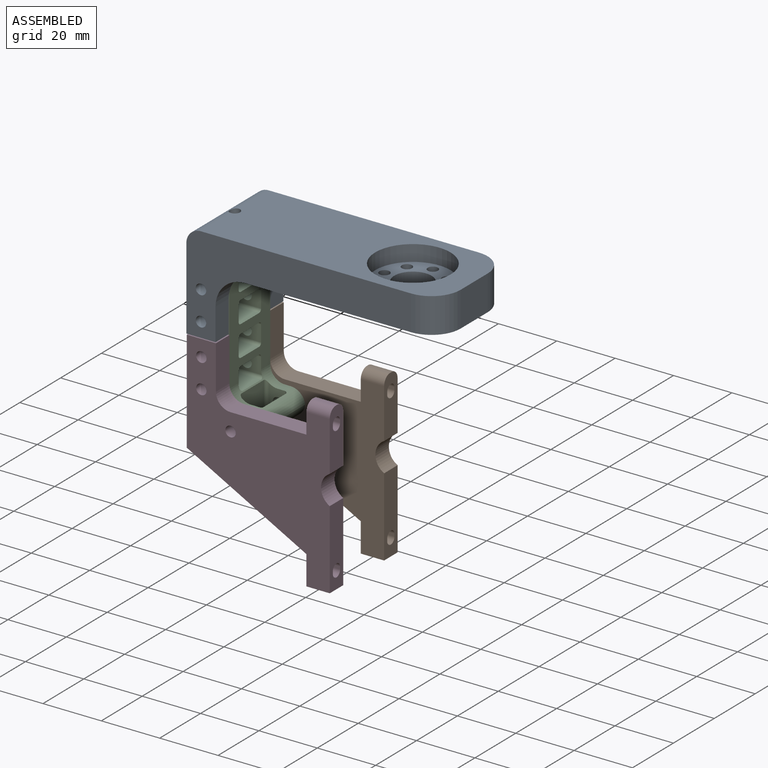
[diagram: assembled view]
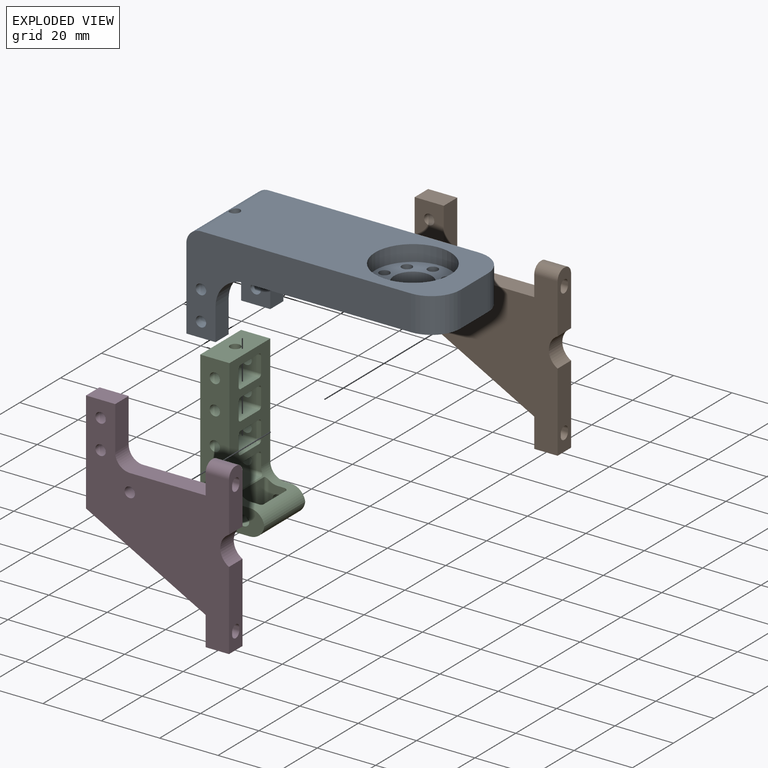
[diagram: exploded view]
GUIDED TOUR — MATED ASSEMBLY (Onshape document 7c3bd5db5bb2b40f2ca0b6bd, AutoMate assembly 7c3bd5db5bb2b40f2ca0b6bd_ed5db630326f70127dd3dd8f_477186eeab16eec67a450e1f_default)

This assembly has 4 components, labeled P0..P3 below (a component is one placed occurrence of a part; the same part can appear more than once), held together by 4 mates. A mate is a constraint between two components; its type names the relative motion it leaves free:
  FASTENED — locks the two components together rigidly (no relative motion),
  PLANAR — leaves sliding in the plane through the listed point (normal = the listed direction) and rotation about that normal free.
Axis/direction vectors are unit vectors and 'through' points are millimeter coordinates, both in the assembly's world frame.

MATES
  1. FASTENED "Fastened 1": P2 <-> P3, direction (0.000, -1.000, 0.000) through (-37.52, -10.86, 22.26) mm
  2. PLANAR "Planar 3": P0 <-> P2, direction (0.000, -1.000, 0.000) through (-36.78, 9.14, 39.67) mm
  3. PLANAR "Planar 1": P0 <-> P2, direction (0.000, 0.000, -1.000) through (2.05, -1.06, 49.28) mm
  4. FASTENED "Fastened 2": P1 <-> P2, direction (0.000, -1.000, 0.000) through (-37.52, 9.14, 22.26) mm

ASSEMBLY ORDER
  1. P0 — the base component [order verified]
  2. P2 [order verified]
  3. P3 [order verified]
  4. P1 [order verified]
Order-tag legend:
  [order verified] — this step's position reverses a verified removal order: the component was checked to insert without passing through the ones already placed.

Of the 4 components, 3 carry the full construction recipe — the FeatureScript program that regenerates the part's solid from scratch; the rest are supplied as boundary geometry only.
Each toured component is shown spotlighted twice — in the assembled view, then in the exploded view, where a leader line traces a displaced component back to its assembled socket (saturated green if recipe-attached, orange if geometry-only; every other component desaturated gray) — followed by its recipe or geometry summary and the mates that hold it.
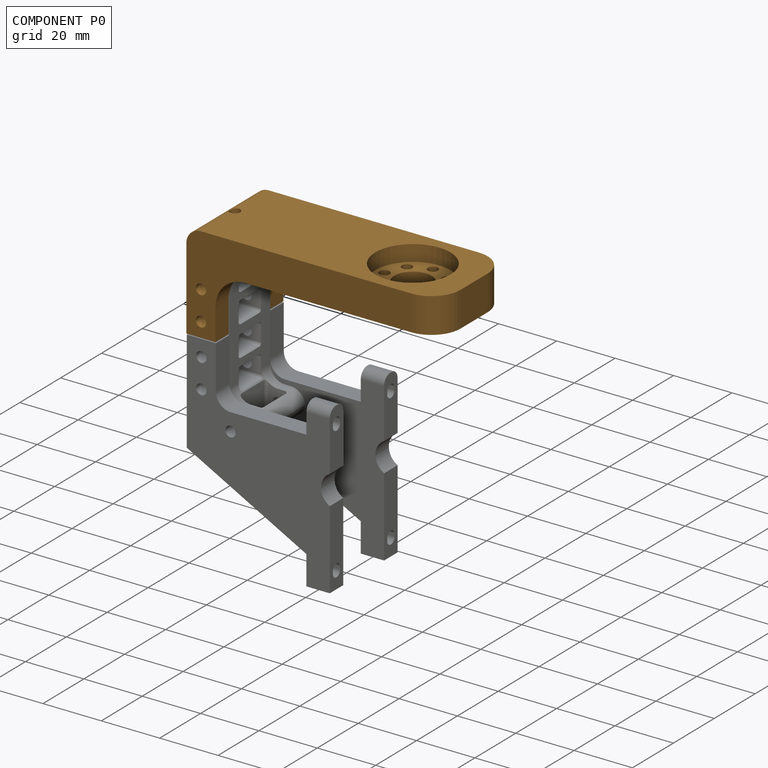
[diagram: component P0 — assembled]
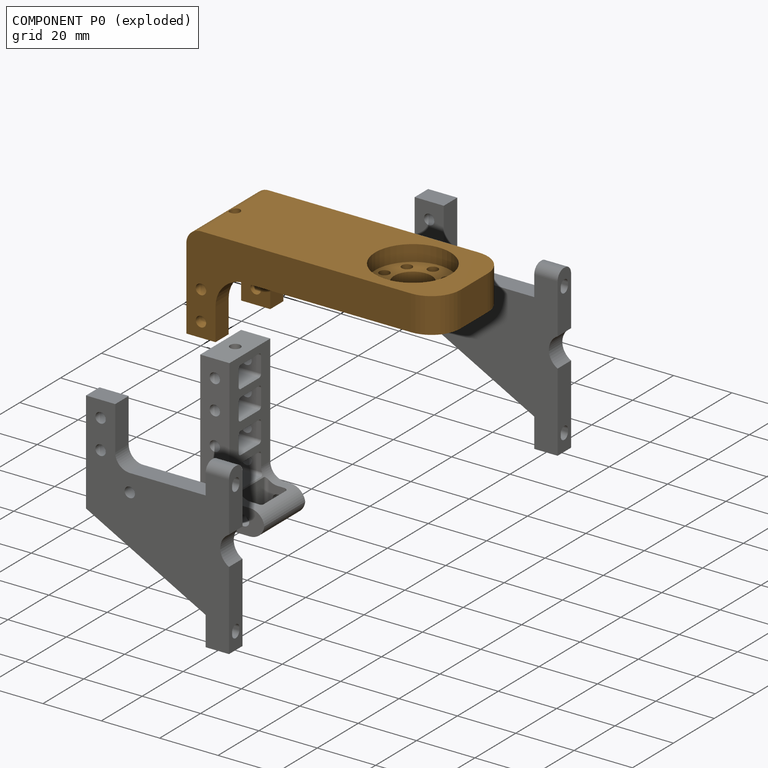
[diagram: component P0 — exploded]
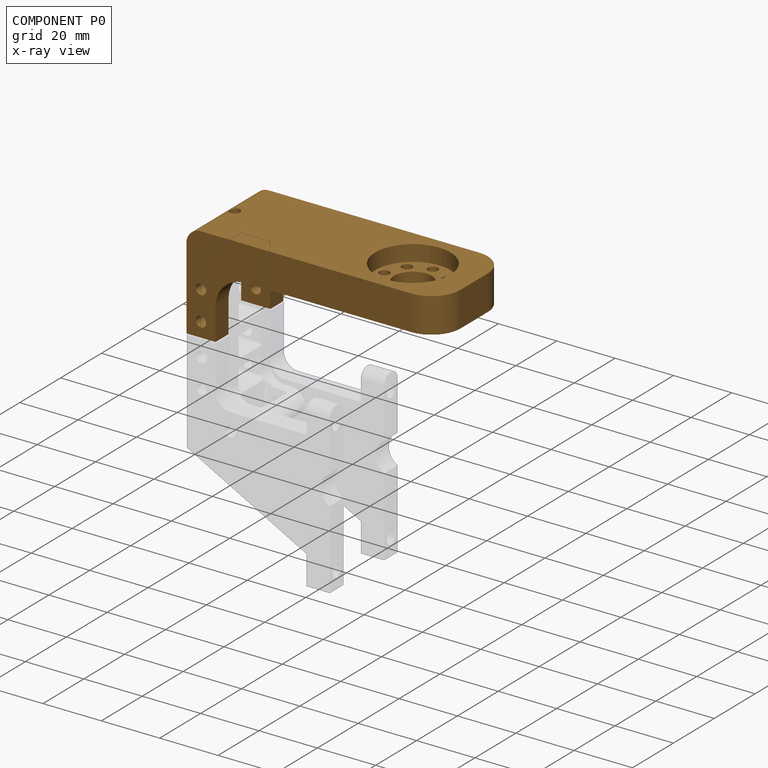
[diagram: component P0 — x-ray view]
COMPONENT P0 — geometry summary (no construction recipe available for this part):
  bounding box: 87.0 x 33.2 x 33.0 mm
  B-rep topology: 1 solid, 33 faces, 208 edges
  volume: 32340 mm^3 (34% of its bounding box)
  symmetry: mirror-symmetric across its y mid-plane
Held by: PLANAR mate "Planar 3" to P2; PLANAR mate "Planar 1" to P2.
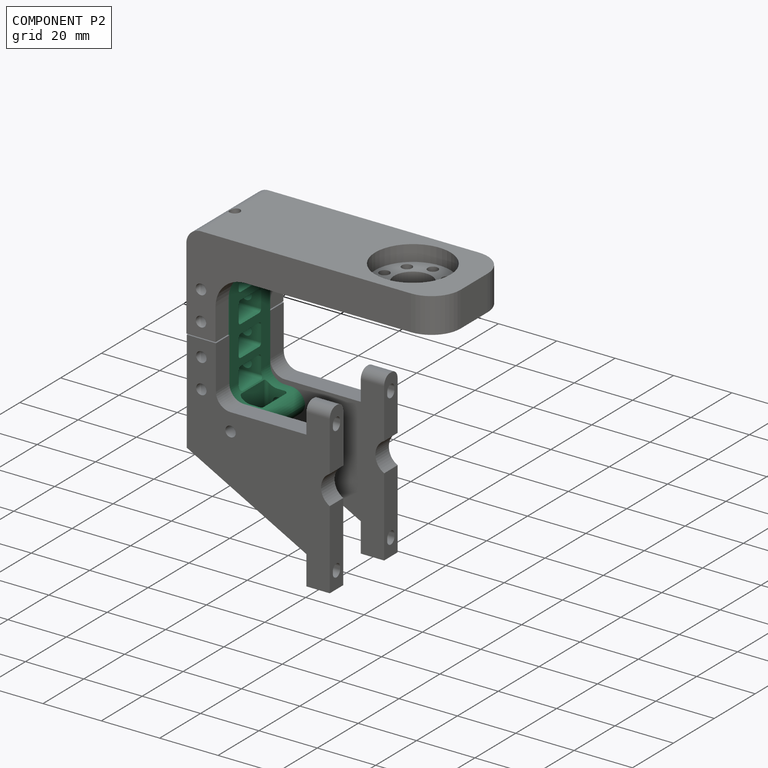
[diagram: component P2 — assembled]
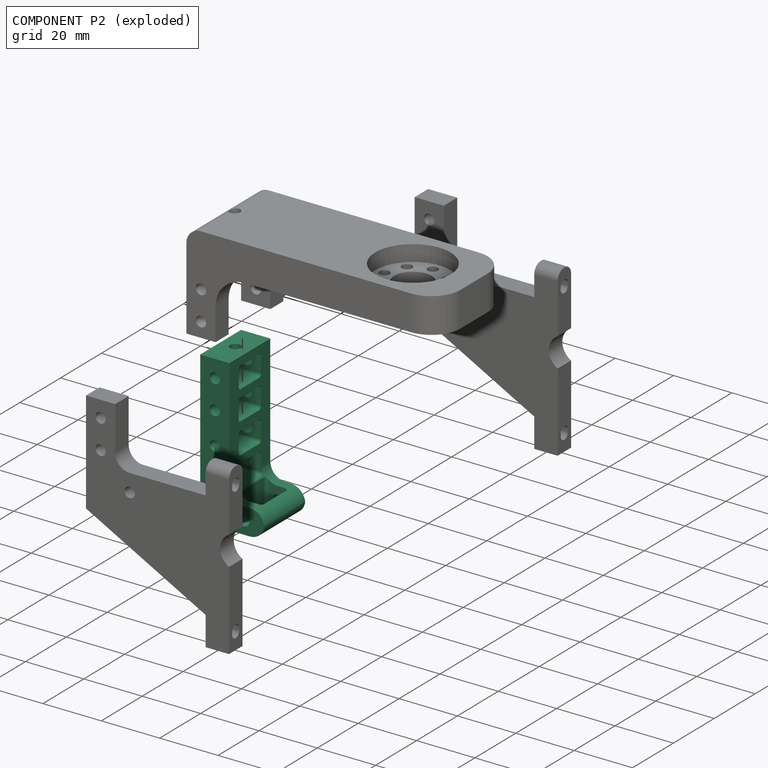
[diagram: component P2 — exploded]
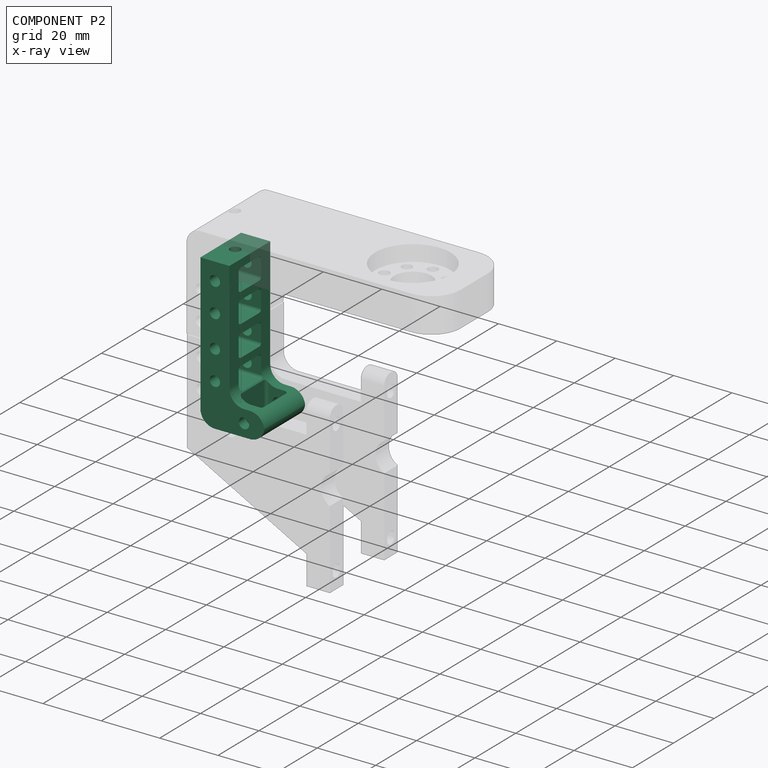
[diagram: component P2 — x-ray view]
COMPONENT P2 — recipe-attached (CADFS 00233516, mesh-verified: the recipe's output STEP matches this component's geometry to below the mesh-comparison resolution (tessellation chordal tolerance ~0.0896 mm)).
Held by: FASTENED mate "Fastened 1" to P3; PLANAR mate "Planar 3" to P0; PLANAR mate "Planar 1" to P0; FASTENED mate "Fastened 2" to P1.
Construction recipe (FeatureScript — the CAD program that rebuilds this solid; sketch coordinates are in the units given by the * unit suffixes, e.g. mm):

FeatureScript 1511;
import(path : "onshape/std/geometry.fs", version : "1511.0");
import(path : "onshape/std/common.fs", version : "1511.0");
const mm = millimeter;
const VERTEX = EntityType.VERTEX;
const EDGE = EntityType.EDGE;
const FACE = EntityType.FACE;
const BODY = EntityType.BODY;
function v(x, y){return vector(x, y);}
function OD(order){return orderDisambiguation(order);}
function OSD(set){return originalSetDisambiguation(set);}
function TD(topology){return topologyDisambiguation(topology);}
function TDD(query){return trueDependencyDisambiguation(query);}
function sQuery(a, b, c) {return sketchEntityQuery(a, b, c);}

annotation { "Feature Type Name" : "Feature", "Feature Type Description" : "" }
export const myFeature = defineFeature(function(context is Context, id is Id, definition is map)
    precondition{}
    {
        {
            var Q0;
            Q0=qCreatedBy(makeId("Front.planeOp"),FACE);
            var sketch = newSketch(context, id + "F0", { "sketchPlane" : qUnion([Q0])});
            skLineSegment(sketch, "E0.top", {"start": v(0, 43) * mm, "end": v(10, 43) * mm});
            skLineSegment(sketch, "E0.left", {"start": v(0, 0) * mm, "end": v(0, 43) * mm});
            skLineSegment(sketch, "E0.right", {"start": v(10, 5) * mm, "end": v(10, 43) * mm});
            skCircle(sketch, "E1", {"center": v(5, 15.97) * mm, "radius": 1.78 * mm});
            skCircle(sketch, "E2", {"center": v(5, 5.97) * mm, "radius": 1.78 * mm});
            skCircle(sketch, "E3", {"center": v(15, -4.42) * mm, "radius": 1.78 * mm});
            skLineSegment(sketch, "E4.bottom", {"start": v(15, 0) * mm, "end": v(17, 0) * mm});
            skLineSegment(sketch, "E4.top", {"start": v(5, -8.8) * mm, "end": v(17, -8.8) * mm});
            skLineSegment(sketch, "E4.left", {"start": v(0, 0) * mm, "end": v(0, -3.8) * mm});
            skLineSegment(sketch, "E4.right", {"start": v(22, -3.8) * mm, "end": v(22, -5) * mm});
            skPoint(sketch, "E5.visualSharp", {"position": v(10, 0) * mm});
            skArc(sketch, "E5.filletArc", {"start": v(10, 5) * mm, "mid": v(11.46, 1.46) * mm, "end": v(15, 0) * mm});
            skPoint(sketch, "E6.visualSharp", {"position": v(0, -8.8) * mm});
            skArc(sketch, "E6.filletArc", {"start": v(0, -3.8) * mm, "mid": v(1.46, -7.33) * mm, "end": v(5, -8.8) * mm});
            skPoint(sketch, "E7.visualSharp", {"position": v(22, -8.8) * mm});
            skArc(sketch, "E7.filletArc", {"start": v(17, -8.8) * mm, "mid": v(20.54, -7.33) * mm, "end": v(22, -3.8) * mm});
            skPoint(sketch, "E8.visualSharp", {"position": v(22, 0) * mm});
            skArc(sketch, "E8.filletArc", {"start": v(22, -5) * mm, "mid": v(20.54, -1.46) * mm, "end": v(17, 0) * mm});
            skCircle(sketch, "E9", {"center": v(5, 27) * mm, "radius": 1.78 * mm});
            skCircle(sketch, "E10.0.1.0", {"center": v(5, 37) * mm, "radius": 1.78 * mm});
            skLineSegment(sketch, "E10.direction1", {"start": v(5, 27) * mm, "end": v(30, 27) * mm, "construction": true});
            skLineSegment(sketch, "E10.direction2", {"start": v(5, 27) * mm, "end": v(5, 37) * mm, "construction": true});
            skSolve(sketch);
        }
        {
            var Q0;
            Q0 = qSketchRegion(id + "F0", true);
            extrude(context, id + "F1", {"entities" : qUnion([Q0]), "depth" : 20 * mm});
        }
        {
            var Q0;
            Q0=makeQuery(id+"F1.opExtrude","SWEPT_FACE",FACE,{"disambiguationData":[OSD([sQuery(id+"F0.wireOp",EDGE,"E0.right")])]});
            var sketch = newSketch(context, id + "F2", { "sketchPlane" : qUnion([Q0])});
            skLineSegment(sketch, "E11.bottom", {"start": v(-14.5, 2.43) * mm, "end": v(-5.5, 2.43) * mm});
            skLineSegment(sketch, "E11.top", {"start": v(-14.5, 9.93) * mm, "end": v(-5.5, 9.93) * mm});
            skLineSegment(sketch, "E12", {"start": v(-15.5, 3.43) * mm, "end": v(-15.5, 8.93) * mm});
            skLineSegment(sketch, "E13", {"start": v(-4.5, 3.43) * mm, "end": v(-4.5, 8.93) * mm});
            skPoint(sketch, "E14.visualSharp", {"position": v(-15.5, 9.93) * mm});
            skArc(sketch, "E14.filletArc", {"start": v(-14.5, 9.93) * mm, "mid": v(-15.2, 9.64) * mm, "end": v(-15.5, 8.93) * mm});
            skPoint(sketch, "E15.visualSharp", {"position": v(-15.5, 2.43) * mm});
            skArc(sketch, "E15.filletArc", {"start": v(-15.5, 3.43) * mm, "mid": v(-15.2, 2.72) * mm, "end": v(-14.5, 2.43) * mm});
            skPoint(sketch, "E16.visualSharp", {"position": v(-4.5, 2.43) * mm});
            skArc(sketch, "E16.filletArc", {"start": v(-5.5, 2.43) * mm, "mid": v(-4.8, 2.72) * mm, "end": v(-4.5, 3.43) * mm});
            skPoint(sketch, "E17.visualSharp", {"position": v(-4.5, 9.93) * mm});
            skArc(sketch, "E17.filletArc", {"start": v(-4.5, 8.93) * mm, "mid": v(-4.8, 9.64) * mm, "end": v(-5.5, 9.93) * mm});
            skPoint(sketch, "E18.0.1.0", {"position": v(-4.5, 19.93) * mm});
            skPoint(sketch, "E18.0.1.1", {"position": v(-4.5, 12.43) * mm});
            skPoint(sketch, "E18.0.1.2", {"position": v(-15.5, 12.43) * mm});
            skLineSegment(sketch, "E18.0.1.3", {"start": v(-14.5, 19.93) * mm, "end": v(-5.5, 19.93) * mm});
            skLineSegment(sketch, "E18.0.1.4", {"start": v(-14.5, 12.43) * mm, "end": v(-5.5, 12.43) * mm});
            skPoint(sketch, "E18.0.1.5", {"position": v(-15.5, 19.93) * mm});
            skArc(sketch, "E18.0.1.6", {"start": v(-14.5, 19.93) * mm, "mid": v(-15.2, 19.64) * mm, "end": v(-15.5, 18.93) * mm});
            skArc(sketch, "E18.0.1.7", {"start": v(-15.5, 13.43) * mm, "mid": v(-15.2, 12.72) * mm, "end": v(-14.5, 12.43) * mm});
            skArc(sketch, "E18.0.1.8", {"start": v(-4.5, 18.93) * mm, "mid": v(-4.8, 19.64) * mm, "end": v(-5.5, 19.93) * mm});
            skArc(sketch, "E18.0.1.9", {"start": v(-5.5, 12.43) * mm, "mid": v(-4.8, 12.72) * mm, "end": v(-4.5, 13.43) * mm});
            skLineSegment(sketch, "E18.0.1.10", {"start": v(-4.5, 13.43) * mm, "end": v(-4.5, 18.93) * mm});
            skLineSegment(sketch, "E18.0.1.11", {"start": v(-15.5, 13.43) * mm, "end": v(-15.5, 18.93) * mm});
            skLineSegment(sketch, "E18.direction1", {"start": v(-15.5, 2.43) * mm, "end": v(9.5, 2.43) * mm, "construction": true});
            skLineSegment(sketch, "E18.direction2", {"start": v(-15.5, 2.43) * mm, "end": v(-15.5, 12.43) * mm, "construction": true});
            skLineSegment(sketch, "E19", {"start": v(-20, 21.4) * mm, "end": v(-10.8, 21.4) * mm, "construction": true});
            skArc(sketch, "E20.MirrorCS", {"start": v(-15.5, 39.39) * mm, "mid": v(-15.2, 40.1) * mm, "end": v(-14.5, 40.39) * mm});
            skArc(sketch, "E21.MirrorCS", {"start": v(-15.5, 29.39) * mm, "mid": v(-15.2, 30.1) * mm, "end": v(-14.5, 30.39) * mm});
            skArc(sketch, "E22.MirrorCS", {"start": v(-14.5, 22.89) * mm, "mid": v(-15.2, 23.18) * mm, "end": v(-15.5, 23.89) * mm});
            skArc(sketch, "E23.MirrorCS", {"start": v(-14.5, 32.89) * mm, "mid": v(-15.2, 33.18) * mm, "end": v(-15.5, 33.89) * mm});
            skArc(sketch, "E24.MirrorCS", {"start": v(-4.5, 23.89) * mm, "mid": v(-4.8, 23.18) * mm, "end": v(-5.5, 22.89) * mm});
            skArc(sketch, "E25.MirrorCS", {"start": v(-5.5, 30.39) * mm, "mid": v(-4.8, 30.1) * mm, "end": v(-4.5, 29.39) * mm});
            skLineSegment(sketch, "E26.MirrorCS", {"start": v(-15.5, 39.39) * mm, "end": v(-15.5, 33.89) * mm});
            skArc(sketch, "E27.MirrorCS", {"start": v(-5.5, 40.39) * mm, "mid": v(-4.8, 40.1) * mm, "end": v(-4.5, 39.39) * mm});
            skArc(sketch, "E28.MirrorCS", {"start": v(-4.5, 33.89) * mm, "mid": v(-4.8, 33.18) * mm, "end": v(-5.5, 32.89) * mm});
            skLineSegment(sketch, "E29.MirrorCS", {"start": v(-14.5, 22.89) * mm, "end": v(-5.5, 22.89) * mm});
            skPoint(sketch, "E30.MirrorP", {"position": v(-4.5, 30.39) * mm});
            skLineSegment(sketch, "E31.MirrorCS", {"start": v(-15.5, 29.39) * mm, "end": v(-15.5, 23.89) * mm});
            skLineSegment(sketch, "E32.MirrorCS", {"start": v(-15.5, 40.39) * mm, "end": v(-15.5, 30.39) * mm, "construction": true});
            skLineSegment(sketch, "E33.MirrorCS", {"start": v(-14.5, 30.39) * mm, "end": v(-5.5, 30.39) * mm});
            skLineSegment(sketch, "E34.MirrorCS", {"start": v(-14.5, 32.89) * mm, "end": v(-5.5, 32.89) * mm});
            skPoint(sketch, "E35.MirrorP", {"position": v(-4.5, 32.89) * mm});
            skPoint(sketch, "E36.MirrorP", {"position": v(-15.5, 22.89) * mm});
            skLineSegment(sketch, "E37.MirrorCS", {"start": v(-4.5, 39.39) * mm, "end": v(-4.5, 33.89) * mm});
            skPoint(sketch, "E38.MirrorP", {"position": v(-15.5, 32.89) * mm});
            skPoint(sketch, "E39.MirrorP", {"position": v(-15.5, 30.39) * mm});
            skLineSegment(sketch, "E40.MirrorCS", {"start": v(-4.5, 29.39) * mm, "end": v(-4.5, 23.89) * mm});
            skPoint(sketch, "E41.MirrorP", {"position": v(-15.5, 40.39) * mm});
            skPoint(sketch, "E42.MirrorP", {"position": v(-4.5, 40.39) * mm});
            skPoint(sketch, "E43.MirrorP", {"position": v(-4.5, 22.89) * mm});
            skLineSegment(sketch, "E44.MirrorCS", {"start": v(-14.5, 40.39) * mm, "end": v(-5.5, 40.39) * mm});
            skSolve(sketch);
        }
        {
            var Q0;
            Q0 = qSketchRegion(id + "F2", true);
            extrude(context, id + "F3", {"entities" : qUnion([Q0]), "operationType" : NewBodyOperationType.REMOVE, "oppositeDirection" : true, "depth" : 25 * mm, "hasSecondDirection" : true, "secondDirectionOppositeDirection" : false, "secondDirectionDepth" : 25 * mm});
        }
        {
            var Q0;
            Q0=makeQuery(id+"F1.opExtrude","SWEPT_FACE",FACE,{"disambiguationData":[OSD([sQuery(id+"F0.wireOp",EDGE,"E4.bottom")])]});
            var sketch = newSketch(context, id + "F4", { "sketchPlane" : qUnion([Q0])});
            skLineSegment(sketch, "E45.bottom", {"start": v(17.46, -16.5) * mm, "end": v(11.96, -16.5) * mm});
            skLineSegment(sketch, "E45.top", {"start": v(17.46, -3.5) * mm, "end": v(11.96, -3.5) * mm});
            skLineSegment(sketch, "E45.left", {"start": v(18.46, -15.5) * mm, "end": v(18.46, -4.5) * mm});
            skLineSegment(sketch, "E45.right", {"start": v(10.96, -15.5) * mm, "end": v(10.96, -4.5) * mm});
            skPoint(sketch, "E46.visualSharp", {"position": v(10.96, -16.5) * mm});
            skArc(sketch, "E46.filletArc", {"start": v(10.96, -15.5) * mm, "mid": v(11.26, -16.2) * mm, "end": v(11.96, -16.5) * mm});
            skPoint(sketch, "E47.visualSharp", {"position": v(10.96, -3.5) * mm});
            skArc(sketch, "E47.filletArc", {"start": v(11.96, -3.5) * mm, "mid": v(11.26, -3.8) * mm, "end": v(10.96, -4.5) * mm});
            skPoint(sketch, "E48.visualSharp", {"position": v(18.46, -3.5) * mm});
            skArc(sketch, "E48.filletArc", {"start": v(18.46, -4.5) * mm, "mid": v(18.17, -3.8) * mm, "end": v(17.46, -3.5) * mm});
            skPoint(sketch, "E49.visualSharp", {"position": v(18.46, -16.5) * mm});
            skArc(sketch, "E49.filletArc", {"start": v(17.46, -16.5) * mm, "mid": v(18.17, -16.2) * mm, "end": v(18.46, -15.5) * mm});
            skSolve(sketch);
        }
        {
            var Q0;
            Q0 = qSketchRegion(id + "F4", true);
            extrude(context, id + "F5", {"entities" : qUnion([Q0]), "operationType" : NewBodyOperationType.REMOVE, "oppositeDirection" : true, "depth" : 25 * mm, "hasSecondDirection" : true, "secondDirectionOppositeDirection" : false, "secondDirectionDepth" : 25 * mm});
        }
        {
            var Q0;
            Q0=makeQuery(id+"F1.opExtrude","SWEPT_FACE",FACE,{"disambiguationData":[OSD([sQuery(id+"F0.wireOp",EDGE,"E0.top")])]});
            var sketch = newSketch(context, id + "F6", { "sketchPlane" : qUnion([Q0])});
            skCircle(sketch, "E50", {"center": v(5, -13.5) * mm, "radius": 1.78 * mm});
            skPoint(sketch, "E50.centerSnap0", {"position": v(5, -20) * mm});
            skLineSegment(sketch, "E51", {"start": v(0, -10) * mm, "end": v(10, -10) * mm, "construction": true});
            skCircle(sketch, "E52.MirrorC", {"center": v(5, -6.5) * mm, "radius": 1.78 * mm});
            skSolve(sketch);
        }
        {
            var Q0;
            Q0 = qSketchRegion(id + "F6", true);
            extrude(context, id + "F7", {"entities" : qUnion([Q0]), "operationType" : NewBodyOperationType.ADD, "endBound" : BoundingType.UP_TO_NEXT, "oppositeDirection" : true, "depth" : 25 * mm});
        }
        {
            var Q0;
            Q0=makeQuery(id+"F1.opExtrude","SWEPT_FACE",FACE,{"disambiguationData":[OSD([sQuery(id+"F0.wireOp",EDGE,"E0.top")])]});
            var sketch = newSketch(context, id + "F8", { "sketchPlane" : qUnion([Q0])});
            skCircle(sketch, "E53", {"center": v(5, -10) * mm, "radius": 1.78 * mm});
            skPoint(sketch, "E53.centerSnap0", {"position": v(10, -10) * mm});
            skSolve(sketch);
        }
        {
            var Q0;
            Q0 = qSketchRegion(id + "F8", true);
            extrude(context, id + "F9", {"entities" : qUnion([Q0]), "operationType" : NewBodyOperationType.REMOVE, "oppositeDirection" : true, "depth" : 5 * mm});
        }
        {
            var Q0;
            Q0=makeQuery(id+"F1.opExtrude","SWEPT_BODY",BODY,{"disambiguationData":[OSD([sQuery(id+"F0.wireOp",EDGE,"E4.right"),sQuery(id+"F0.wireOp",EDGE,"E7.filletArc"),sQuery(id+"F0.wireOp",EDGE,"E8.filletArc")])]});
            deleteBodies(context, id + "F10", {"entities" : qUnion([Q0])});
        }
    });
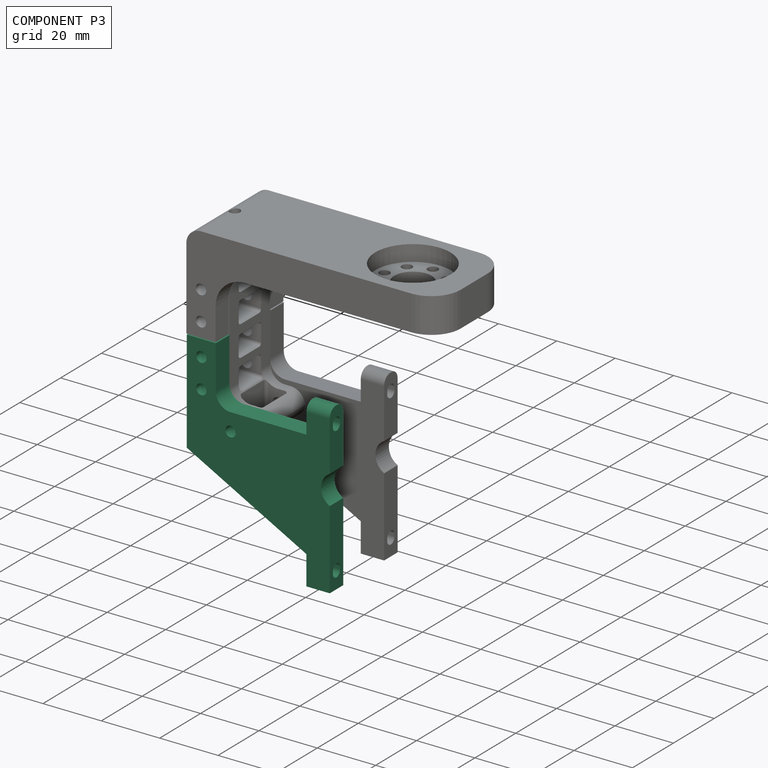
[diagram: component P3 — assembled]
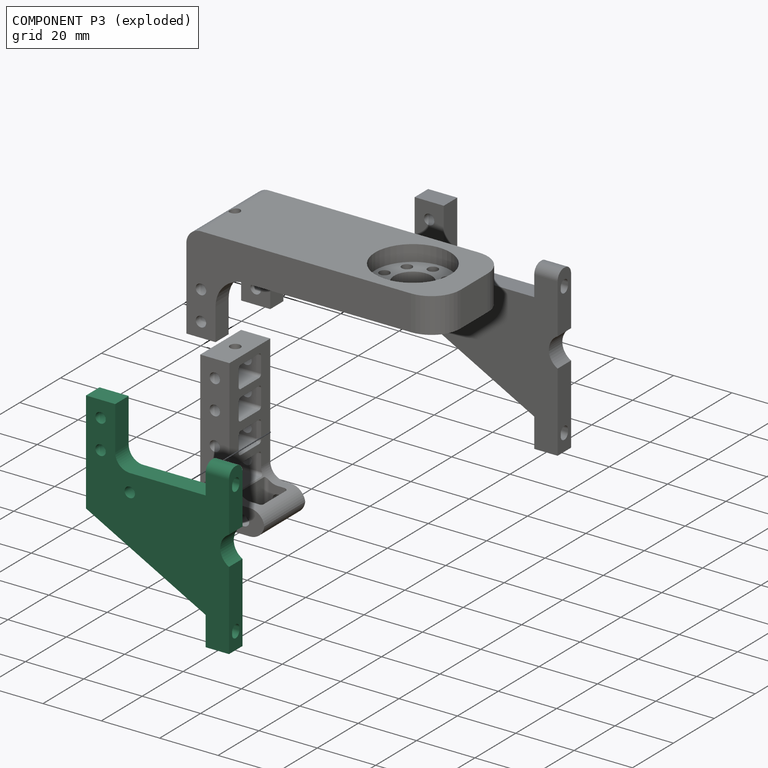
[diagram: component P3 — exploded]
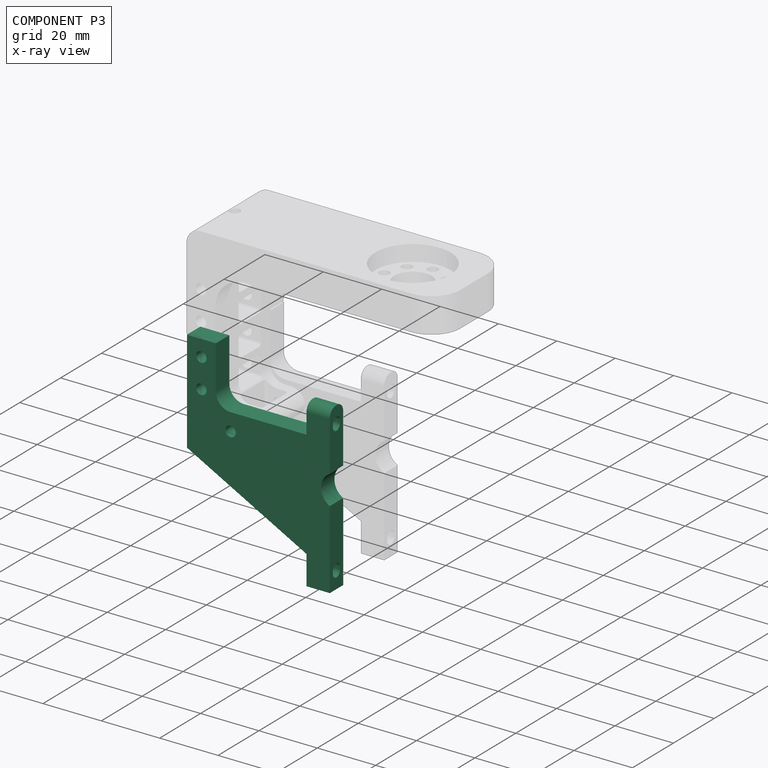
[diagram: component P3 — x-ray view]
COMPONENT P3 — same part as P1 (CADFS 00233515); its construction recipe is shown at P1.
Held by: FASTENED mate "Fastened 1" to P2.
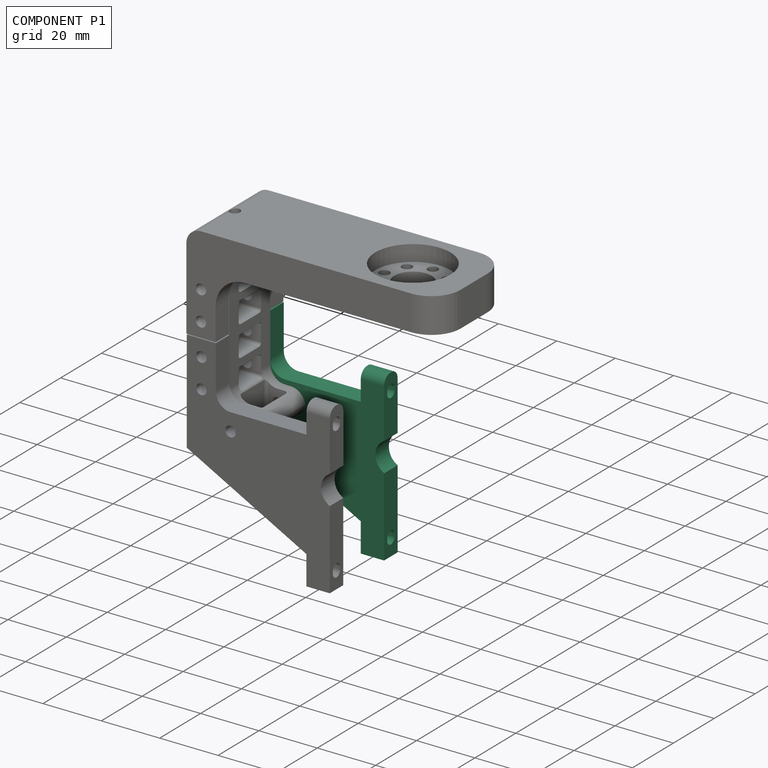
[diagram: component P1 — assembled]
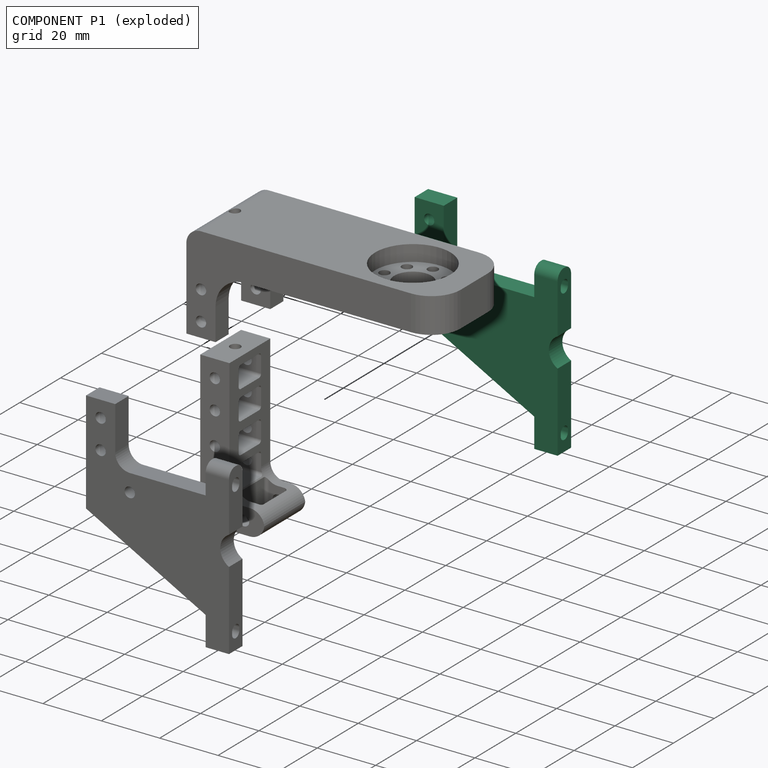
[diagram: component P1 — exploded]
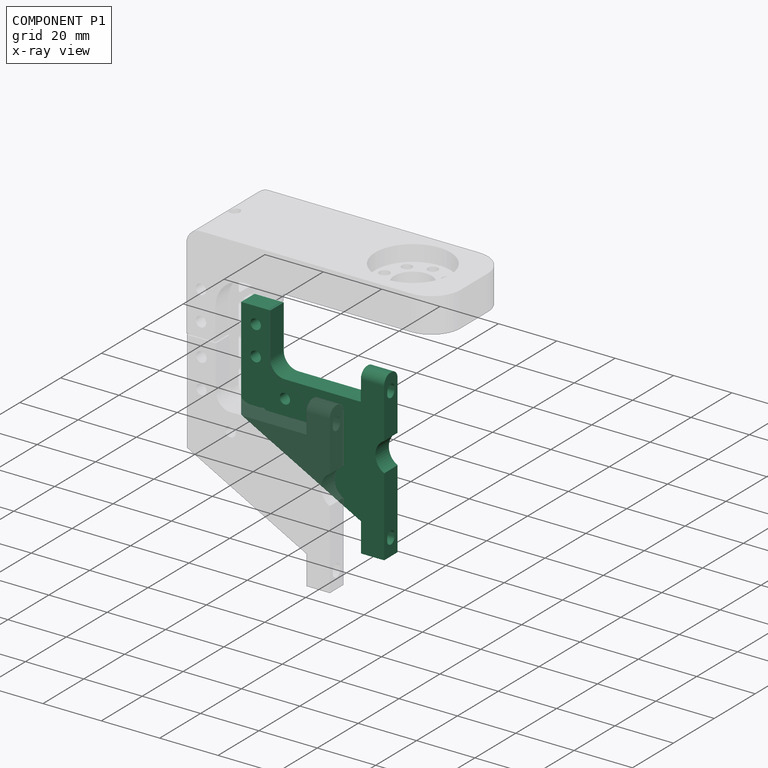
[diagram: component P1 — x-ray view]
COMPONENT P1 — recipe-attached (CADFS 00233515, mesh-verified: the recipe's output STEP matches this component's geometry to below the mesh-comparison resolution (tessellation chordal tolerance ~0.125 mm)).
Held by: FASTENED mate "Fastened 2" to P2.
Construction recipe (FeatureScript — the CAD program that rebuilds this solid; sketch coordinates are in the units given by the * unit suffixes, e.g. mm):

FeatureScript 1511;
import(path : "onshape/std/geometry.fs", version : "1511.0");
import(path : "onshape/std/common.fs", version : "1511.0");
const mm = millimeter;
const VERTEX = EntityType.VERTEX;
const EDGE = EntityType.EDGE;
const FACE = EntityType.FACE;
const BODY = EntityType.BODY;
function v(x, y){return vector(x, y);}
function OD(order){return orderDisambiguation(order);}
function OSD(set){return originalSetDisambiguation(set);}
function TD(topology){return topologyDisambiguation(topology);}
function TDD(query){return trueDependencyDisambiguation(query);}
function sQuery(a, b, c) {return sketchEntityQuery(a, b, c);}

annotation { "Feature Type Name" : "Feature", "Feature Type Description" : "" }
export const myFeature = defineFeature(function(context is Context, id is Id, definition is map)
    precondition{}
    {
        {
            var Q0;
            Q0=qCreatedBy(makeId("Front.planeOp"),FACE);
            var sketch = newSketch(context, id + "F0", { "sketchPlane" : qUnion([Q0])});
            skLineSegment(sketch, "E0.bottom", {"start": v(0, 0) * mm, "end": v(8, 0) * mm});
            skLineSegment(sketch, "E0.top", {"start": v(0, 57) * mm, "end": v(8, 57) * mm});
            skLineSegment(sketch, "E0.left", {"start": v(0, 0) * mm, "end": v(0, 10) * mm});
            skLineSegment(sketch, "E0.right", {"start": v(8, 0) * mm, "end": v(8, 27) * mm});
            skLineSegment(sketch, "E1", {"start": v(0, 10) * mm, "end": v(-41, 32) * mm});
            skLineSegment(sketch, "E2", {"start": v(-41, 32) * mm, "end": v(-41, 67) * mm});
            skLineSegment(sketch, "E3", {"start": v(-41, 67) * mm, "end": v(-31, 67) * mm});
            skLineSegment(sketch, "E4", {"start": v(-31, 67) * mm, "end": v(-31, 52) * mm});
            skLineSegment(sketch, "E5", {"start": v(-26, 47) * mm, "end": v(0, 47) * mm});
            skLineSegment(sketch, "E6.trimOffspring", {"start": v(0, 47) * mm, "end": v(0, 57) * mm});
            skArc(sketch, "E7", {"start": v(8, 37) * mm, "mid": v(5, 32) * mm, "end": v(8, 27) * mm});
            skLineSegment(sketch, "E8.trimOffspring", {"start": v(8, 37) * mm, "end": v(8, 57) * mm});
            skPoint(sketch, "E9.visualSharp", {"position": v(-31, 47) * mm});
            skArc(sketch, "E9.filletArc", {"start": v(-31, 52) * mm, "mid": v(-29.54, 48.46) * mm, "end": v(-26, 47) * mm});
            skCircle(sketch, "E10", {"center": v(-36, 61.4) * mm, "radius": 1.78 * mm});
            skCircle(sketch, "E11", {"center": v(-36, 51.4) * mm, "radius": 1.78 * mm});
            skCircle(sketch, "E12", {"center": v(-26, 41) * mm, "radius": 1.78 * mm});
            skSolve(sketch);
        }
        {
            var Q0;
            Q0 = qSketchRegion(id + "F0", true);
            extrude(context, id + "F1", {"entities" : qUnion([Q0]), "depth" : 6.6 * mm});
        }
        {
            var Q0;
            Q0=makeQuery(id+"F1.opExtrude","SWEPT_FACE",FACE,{"disambiguationData":[OSD([sQuery(id+"F0.wireOp",EDGE,"E8.trimOffspring")])]});
            var sketch = newSketch(context, id + "F2", { "sketchPlane" : qUnion([Q0])});
            skLineSegment(sketch, "E13.0", {"start": v(-1.54, 51.9) * mm, "end": v(-1.54, 50.86) * mm});
            skArc(sketch, "E14.0", {"start": v(-5.08, 51.62) * mm, "mid": v(-3.44, 53.4) * mm, "end": v(-1.54, 51.9) * mm});
            skLineSegment(sketch, "E15.0", {"start": v(-5.08, 50.59) * mm, "end": v(-5.08, 51.62) * mm});
            skArc(sketch, "E16.0", {"start": v(-1.54, 50.86) * mm, "mid": v(-3.18, 49.09) * mm, "end": v(-5.08, 50.59) * mm});
            skArc(sketch, "E17.0.1.0", {"start": v(-1.54, 5.46) * mm, "mid": v(-3.18, 3.69) * mm, "end": v(-5.08, 5.19) * mm});
            skArc(sketch, "E17.0.1.1", {"start": v(-5.08, 6.22) * mm, "mid": v(-3.44, 8) * mm, "end": v(-1.54, 6.5) * mm});
            skLineSegment(sketch, "E17.0.1.2", {"start": v(-5.08, 5.19) * mm, "end": v(-5.08, 6.22) * mm});
            skLineSegment(sketch, "E17.0.1.3", {"start": v(-1.54, 6.5) * mm, "end": v(-1.54, 5.46) * mm});
            skLineSegment(sketch, "E17.direction1", {"start": v(-5.08, 51.62) * mm, "end": v(19.22, 51.62) * mm, "construction": true});
            skLineSegment(sketch, "E17.direction2", {"start": v(-5.08, 51.62) * mm, "end": v(-5.08, 6.22) * mm, "construction": true});
            skSolve(sketch);
        }
        {
            var Q0;
            Q0 = qSketchRegion(id + "F2", true);
            extrude(context, id + "F3", {"entities" : qUnion([Q0]), "operationType" : NewBodyOperationType.REMOVE, "endBound" : BoundingType.UP_TO_NEXT, "oppositeDirection" : true, "depth" : 25 * mm});
        }
        {
            var Q0;
            Q0=makeQuery(id+"F1.opExtrude","CAP_EDGE",EDGE,{"disambiguationData":[OSD([sQuery(id+"F0.wireOp",EDGE,"E0.top")])],"isStart":true});
            var Q1;
            Q1=makeQuery(id+"F1.opExtrude","CAP_EDGE",EDGE,{"disambiguationData":[OSD([sQuery(id+"F0.wireOp",EDGE,"E0.top")])],"isStart":false});
            fillet(context, id + "F4", {"entities" : qUnion([Q0, Q1]), "radius" : 3 * mm, "tangentPropagation" : true, "allowEdgeOverflow" : false});
        }
    });
PROVENANCE & LICENSES
Assembly (occurrences, transforms, mates, per-part STEP geometry): AutoMate dataset, Zenodo record 7776208, CC0.
Construction recipes: CADFS (HuggingFace VladPyatov/CADFS, CC-BY-4.0, layered over the ABC dataset), FeatureScript reconstruction programs keyed by ABC model id.
Join: ABC meta listings map ABC model id -> Onshape documentId; within a shared document, parts are matched by geometric signature (bounding-box dims + volume at 0.1% relative tolerance, exact B-rep face/solid counts).
Verification: 3 of this assembly's 4 components carry a recipe attachment, and every attachment is mesh-verified: the CADFS STEP and the AutoMate member STEP were compared as meshes in their shared local frame (symmetric sampled-point-to-mesh distance); worst across the 3 attachments: below the mesh-comparison resolution (tessellation chordal tolerance ~0.125 mm) on a 83 mm part.
Renders: orthographic iso camera (az 35 / el 25); the floor grid conveys scale (grid pitch printed in each image; no ruler). In the exploded view each component is displaced by its stored offset vector: the offsets alone carry the explosion direction (mate normal/axis signs are not orientation cues and do not encode it), and separation distances are assigned per mate-chain, not proportionally to assembly-order depth.
